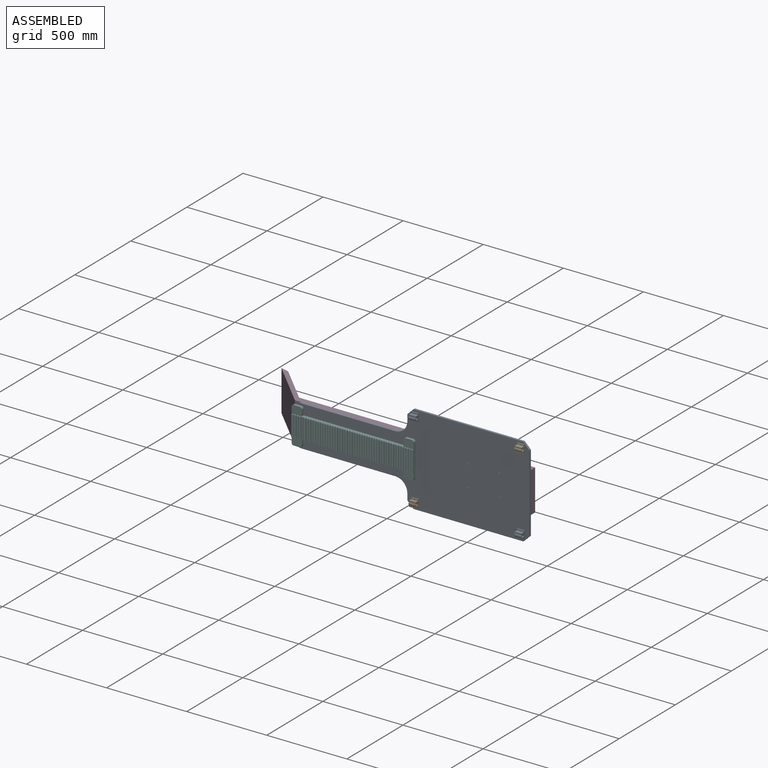
[diagram: assembled view]
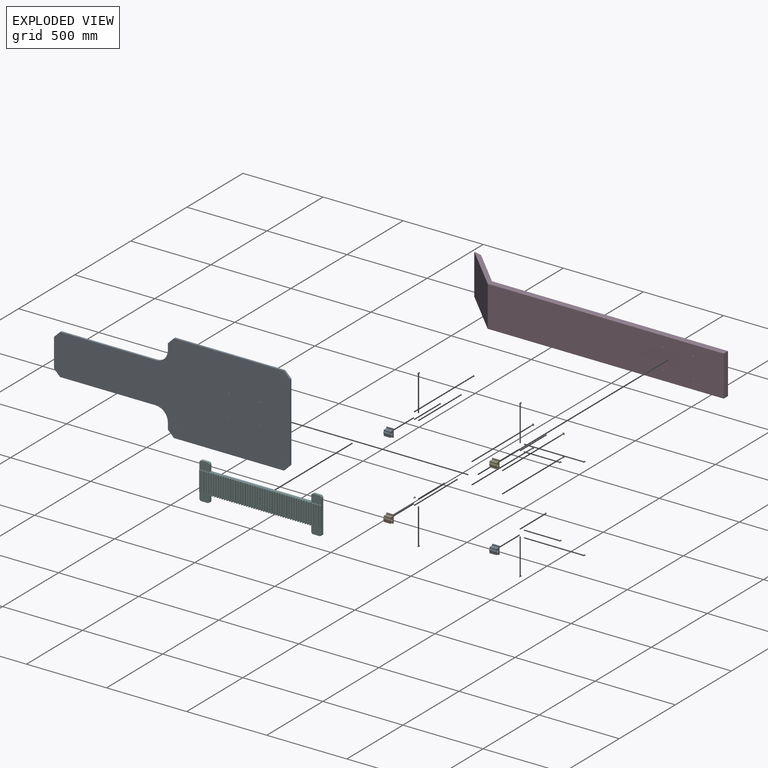
[diagram: exploded view]
GUIDED TOUR — MATED ASSEMBLY (Onshape document e9708ffabd6914f6b537aed8, AutoMate assembly e9708ffabd6914f6b537aed8_26f92d5d70f1b89094800ef0_7c7fea5a1ede16030653a03a_default)

This assembly has 27 components, labeled P0..P26 below (a component is one placed occurrence of a part; the same part can appear more than once), held together by 26 mates. A mate is a constraint between two components; its type names the relative motion it leaves free:
  FASTENED — locks the two components together rigidly (no relative motion).
Axis/direction vectors are unit vectors and 'through' points are millimeter coordinates, both in the assembly's world frame.

MATES
  1. FASTENED "Fastened 4": P12 <-> P24, direction (0.000, 1.000, 0.000) through (999.34, 252.25, 369.30) mm
  2. FASTENED "Fastened 9": P22 <-> P24, direction (0.000, -1.000, 0.000) through (338.93, 264.95, 326.43) mm
  3. FASTENED "Fastened 13": P2 <-> P24, direction (0.000, -1.000, 0.000) through (999.34, 264.95, 326.43) mm
  4. FASTENED "Fastened 21": P26 <-> P24, direction (0.000, -1.000, 0.000) through (338.93, 264.95, -115.69) mm
  5. FASTENED "Fastened 22": P17 <-> P24, direction (0.000, -1.000, 0.000) through (364.33, 264.95, -115.69) mm
  6. FASTENED "Fastened 8": P13 <-> P24, direction (0.000, -1.000, 0.000) through (338.93, 264.95, 369.30) mm
  7. FASTENED "Fastened 5": P0 <-> P24, direction (0.000, 1.000, 0.000) through (999.34, 252.25, -115.69) mm
  8. FASTENED "Fastened 14": P18 <-> P24, direction (0.000, -1.000, 0.000) through (1024.74, 264.95, 326.43) mm
  9. FASTENED "Fastened 2": P25 <-> P24, direction (0.000, 1.000, 0.000) through (338.93, 252.25, -115.69) mm
  10. FASTENED "Fastened 12": P9 <-> P24, direction (0.000, -1.000, 0.000) through (1024.74, 264.95, 369.30) mm
  11. FASTENED "Fastened 7": P23 <-> P24, direction (0.000, -1.000, 0.000) through (364.33, 264.95, 369.30) mm
  12. FASTENED "Fastened 3": P16 <-> P24, direction (0.000, 1.000, 0.000) through (364.33, 252.25, 326.43) mm
  13. FASTENED "Fastened 23": P3 <-> P11, direction (0.000, -1.000, 0.000) through (681.83, 303.05, 170.85) mm
  14. FASTENED "Fastened 20": P7 <-> P24, direction (0.000, -1.000, 0.000) through (364.33, 264.95, -158.56) mm
  15. FASTENED "Fastened 25": P21 <-> P11, direction (0.000, -1.000, 0.000) through (681.83, 303.05, 39.89) mm
  16. FASTENED "Fastened 10": P15 <-> P24, direction (0.000, -1.000, 0.000) through (364.33, 264.95, 326.43) mm
  17. FASTENED "Fastened 19": P10 <-> P24, direction (0.000, -1.000, 0.000) through (338.93, 264.95, -158.56) mm
  18. FASTENED "Fastened 24": P1 <-> P11, direction (0.000, -1.000, 0.000) through (872.33, 303.05, 170.85) mm
  19. FASTENED "Fastened 6": P11 <-> P24, direction (0.000, -1.000, 0.000) through (872.33, 264.95, 39.89) mm
  20. FASTENED "Fastened 15": P6 <-> P24, direction (0.000, -1.000, 0.000) through (1024.74, 264.95, -158.56) mm
  21. FASTENED "Fastened 11": P8 <-> P24, direction (0.000, -1.000, 0.000) through (999.34, 264.95, 369.30) mm
  22. FASTENED "Fastened 1": P5 <-> P24, direction (0.000, 0.000, -1.000) through (-410.37, 252.25, 105.37) mm
  23. FASTENED "Fastened 17": P19 <-> P24, direction (0.000, -1.000, 0.000) through (999.34, 264.95, -115.69) mm
  24. FASTENED "Fastened 26": P14 <-> P11, direction (0.000, -1.000, 0.000) through (872.33, 303.05, 39.89) mm
  25. FASTENED "Fastened 18": P20 <-> P24, direction (0.000, -1.000, 0.000) through (1024.74, 264.95, -115.69) mm
  26. FASTENED "Fastened 16": P4 <-> P24, direction (0.000, -1.000, 0.000) through (999.34, 264.95, -158.56) mm

ASSEMBLY ORDER
  1. P26 — the base component [order verified]
  2. P22 [order verified]
  3. P17 [order verified]
  4. P15 [order verified]
  5. P19 [order verified]
  6. P2 [order verified]
  7. P13 [order verified]
  8. P10 [order verified]
  9. P24 [order verified]
  10. P20 [order verified]
  11. P18 [order verified]
  12. P9 [order verified]
  13. P6 [order verified]
  14. P21 [order verified]
  15. P14 [order verified]
  16. P3 [order verified]
  17. P1 [order verified]
  18. P11 [order verified]
  19. P25 [order verified]
  20. P16 [order verified]
  21. P12 [order verified]
  22. P0 [order verified]
  23. P5 [order verified]
  24. P23 [order verified]
  25. P7 [order verified]
  26. P4 [order verified]
  27. P8 [order verified]
Order-tag legend:
  [order verified] — this step's position reverses a verified removal order: the component was checked to insert without passing through the ones already placed.

Of the 27 components, 3 carry the full construction recipe — the FeatureScript program that regenerates the part's solid from scratch; the rest are supplied as boundary geometry only.
Because this assembly has more than 12 components, the tour below covers the 12 most significant ones individually (every recipe-attached component first, then the largest by part volume), in assembly order; the remaining 15 are summarized together in a grouped section at the end.
Each toured component is shown spotlighted twice — in the assembled view, then in the exploded view, where a leader line traces a displaced component back to its assembled socket (saturated green if recipe-attached, orange if geometry-only; every other component desaturated gray) — followed by its recipe or geometry summary and the mates that hold it.
NOTE — this tour is split across 2 documents so each fits a 32k-token context. This is document 1: the component sections continue in the remaining 1 document, each repeating the header above.
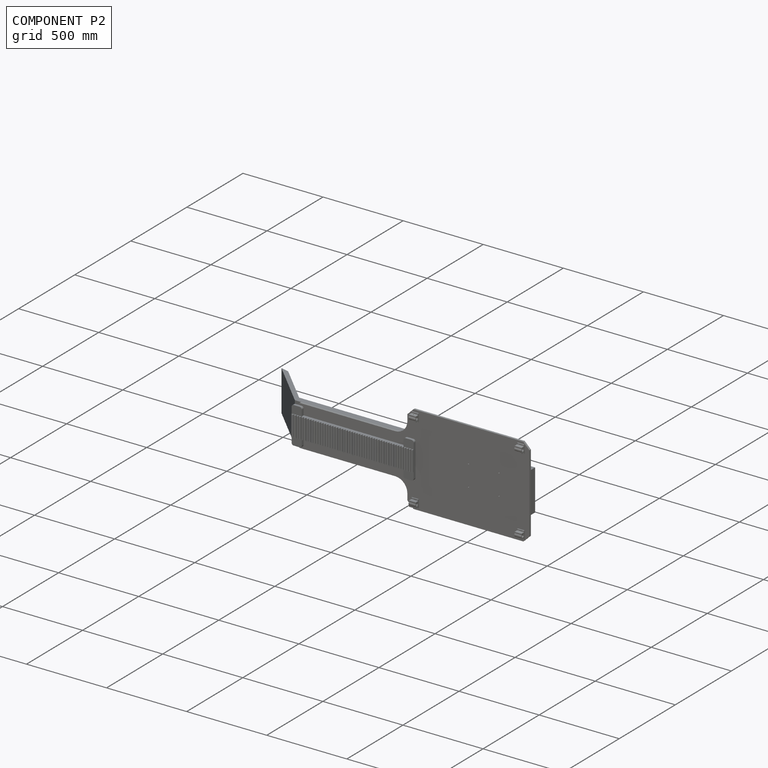
[diagram: component P2 — assembled]
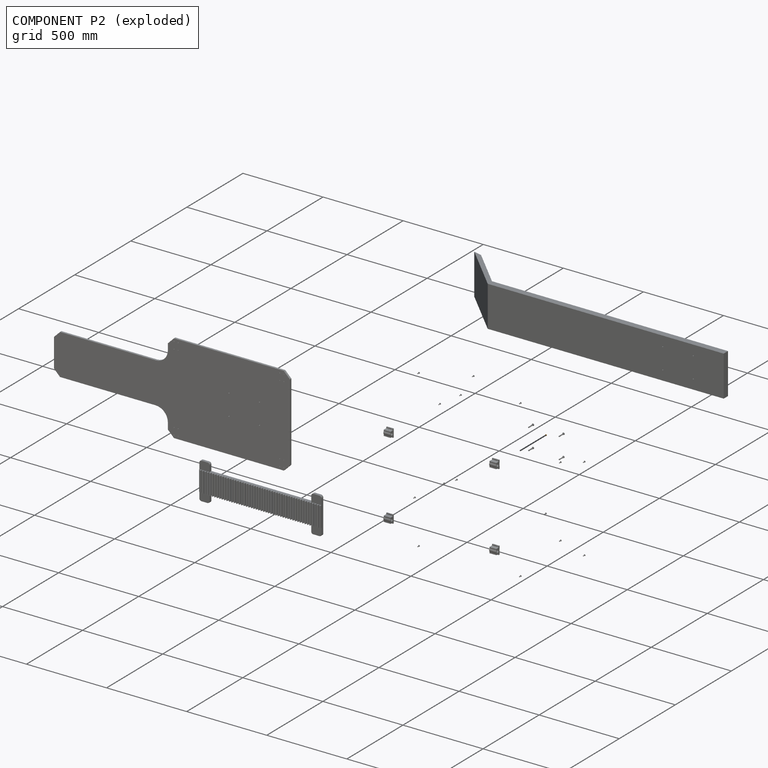
[diagram: component P2 — exploded]
COMPONENT P2 — geometry summary (no construction recipe available for this part):
  bounding box: 16.6 x 10.7 x 10.7 mm
  B-rep topology: 1 solid, 68 faces, 380 edges
  volume: 333 mm^3 (18% of its bounding box)
Held by: FASTENED mate "Fastened 13" to P24.
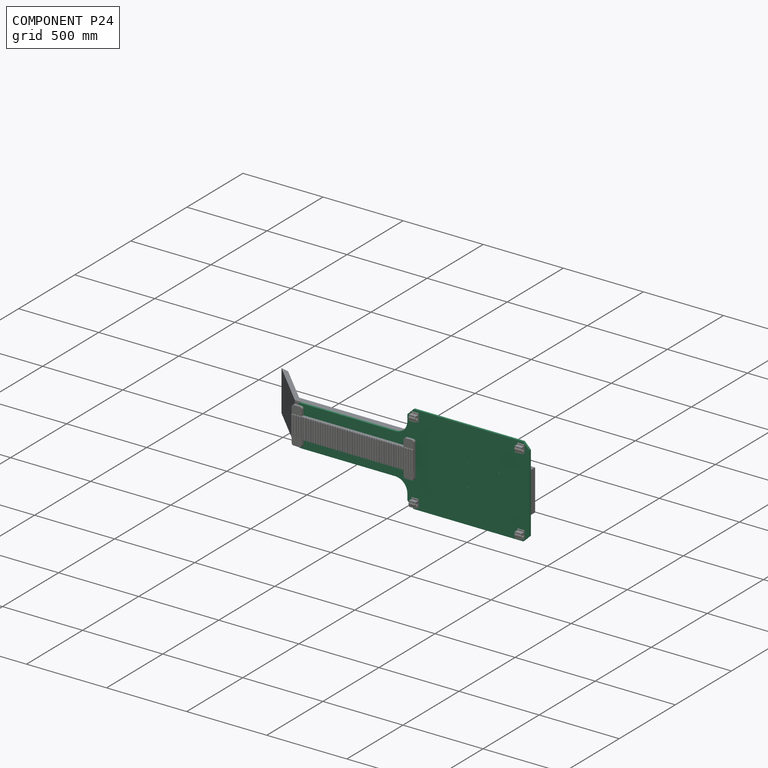
[diagram: component P24 — assembled]
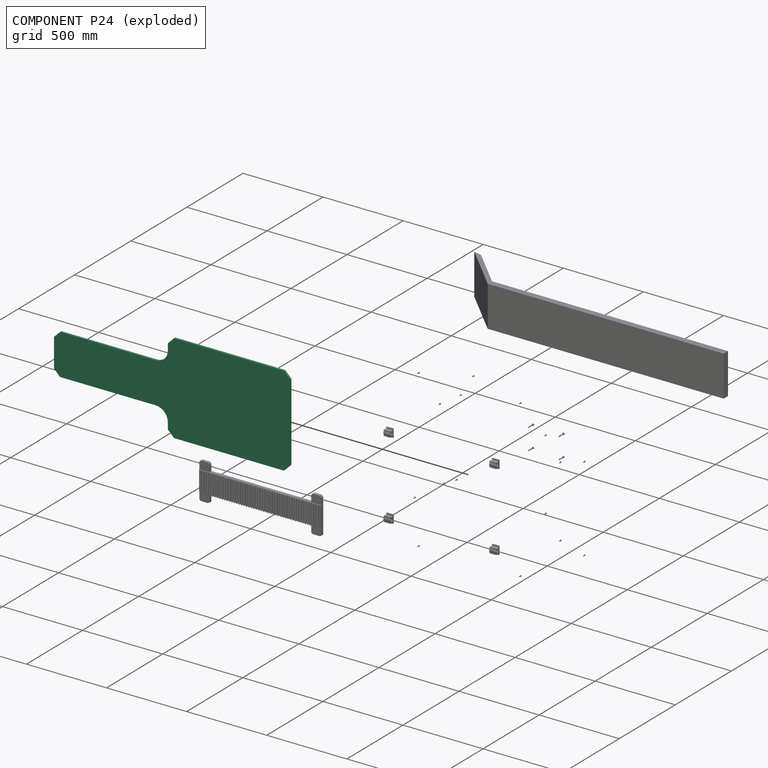
[diagram: component P24 — exploded]
COMPONENT P24 — recipe-attached (CADFS 00270912, mesh-verified: the recipe's output STEP matches this component's geometry to below the mesh-comparison resolution (tessellation chordal tolerance ~2.37 mm)).
Held by: FASTENED mate "Fastened 4" to P12; FASTENED mate "Fastened 9" to P22; FASTENED mate "Fastened 13" to P2; FASTENED mate "Fastened 21" to P26; FASTENED mate "Fastened 22" to P17; FASTENED mate "Fastened 8" to P13; FASTENED mate "Fastened 5" to P0; FASTENED mate "Fastened 14" to P18; FASTENED mate "Fastened 2" to P25; FASTENED mate "Fastened 12" to P9; FASTENED mate "Fastened 7" to P23; FASTENED mate "Fastened 3" to P16; FASTENED mate "Fastened 20" to P7; FASTENED mate "Fastened 10" to P15; FASTENED mate "Fastened 19" to P10; FASTENED mate "Fastened 6" to P11; FASTENED mate "Fastened 15" to P6; FASTENED mate "Fastened 11" to P8; FASTENED mate "Fastened 1" to P5; FASTENED mate "Fastened 17" to P19; FASTENED mate "Fastened 18" to P20; FASTENED mate "Fastened 16" to P4.
Construction recipe (FeatureScript — the CAD program that rebuilds this solid; sketch coordinates are in the units given by the * unit suffixes, e.g. mm):

FeatureScript 1511;
import(path : "onshape/std/geometry.fs", version : "1511.0");
import(path : "onshape/std/common.fs", version : "1511.0");
const mm = millimeter;
const VERTEX = EntityType.VERTEX;
const EDGE = EntityType.EDGE;
const FACE = EntityType.FACE;
const BODY = EntityType.BODY;
function v(x, y){return vector(x, y);}
function OD(order){return orderDisambiguation(order);}
function OSD(set){return originalSetDisambiguation(set);}
function TD(topology){return topologyDisambiguation(topology);}
function TDD(query){return trueDependencyDisambiguation(query);}
function sQuery(a, b, c) {return sketchEntityQuery(a, b, c);}

annotation { "Feature Type Name" : "Feature", "Feature Type Description" : "" }
export const myFeature = defineFeature(function(context is Context, id is Id, definition is map)
    precondition{}
    {
        {
            var Q0;
            Q0=qCreatedBy(makeId("Front.planeOp"),FACE);
            var sketch = newSketch(context, id + "F0", { "sketchPlane" : qUnion([Q0])});
            skLineSegment(sketch, "E0", {"start": v(711.2, 0) * mm, "end": v(1473.2, 0) * mm});
            skLineSegment(sketch, "E1.0", {"start": v(711.2, 562.76) * mm, "end": v(1473.2, 562.76) * mm});
            skLineSegment(sketch, "E2", {"start": v(1473.2, 562.76) * mm, "end": v(1473.2, 0) * mm});
            skLineSegment(sketch, "E3.0", {"start": v(711.2, 0) * mm, "end": v(711.2, 78.18) * mm});
            skLineSegment(sketch, "E4.0", {"start": v(635, 408.38) * mm, "end": v(0, 408.38) * mm});
            skLineSegment(sketch, "E5.MirrorCS", {"start": v(635, 154.38) * mm, "end": v(0, 154.38) * mm});
            skLineSegment(sketch, "E6.trimOffspring", {"start": v(711.2, 484.58) * mm, "end": v(711.2, 562.76) * mm});
            skArc(sketch, "E7.filletArc", {"start": v(635, 408.38) * mm, "mid": v(688.88, 430.7) * mm, "end": v(711.2, 484.58) * mm});
            skArc(sketch, "E8.filletArc", {"start": v(711.2, 78.18) * mm, "mid": v(688.88, 132.06) * mm, "end": v(635, 154.38) * mm});
            skLineSegment(sketch, "E9", {"start": v(0, 408.38) * mm, "end": v(0, 154.38) * mm});
            skSolve(sketch);
        }
        {
            var Q0;
            Q0 = qSketchRegion(id + "F0", true);
            extrude(context, id + "F1", {"entities" : qUnion([Q0]), "depth" : 12.7 * mm});
        }
        {
            var Q0;
            Q0=makeQuery(id+"F1.opExtrude","SWEPT_EDGE",EDGE,{"disambiguationData":[OSD([sQuery(id+"F0.wireOp",EDGE,"E1.0"),sQuery(id+"F0.wireOp",EDGE,"E6.trimOffspring")])]});
            var Q1;
            Q1=makeQuery(id+"F1.opExtrude","SWEPT_EDGE",EDGE,{"disambiguationData":[OSD([sQuery(id+"F0.wireOp",EDGE,"E0"),sQuery(id+"F0.wireOp",EDGE,"E3.0")])]});
            var Q2;
            Q2=makeQuery(id+"F1.opExtrude","SWEPT_EDGE",EDGE,{"disambiguationData":[OSD([sQuery(id+"F0.wireOp",EDGE,"E0"),sQuery(id+"F0.wireOp",EDGE,"E2")])]});
            var Q3;
            Q3=makeQuery(id+"F1.opExtrude","SWEPT_EDGE",EDGE,{"disambiguationData":[OSD([sQuery(id+"F0.wireOp",EDGE,"E1.0"),sQuery(id+"F0.wireOp",EDGE,"E2")])]});
            var Q4;
            Q4=makeQuery(id+"F1.opExtrude","SWEPT_EDGE",EDGE,{"disambiguationData":[OSD([sQuery(id+"F0.wireOp",EDGE,"E5.MirrorCS"),sQuery(id+"F0.wireOp",EDGE,"E9")])]});
            var Q5;
            Q5=makeQuery(id+"F1.opExtrude","SWEPT_EDGE",EDGE,{"disambiguationData":[OSD([sQuery(id+"F0.wireOp",EDGE,"E4.0"),sQuery(id+"F0.wireOp",EDGE,"E9")])]});
            chamfer(context, id + "F2", {"entities" : qUnion([Q0, Q1, Q2, Q3, Q4, Q5]), "chamferType" : ChamferType.OFFSET_ANGLE, "width" : 38.1 * mm, "oppositeDirection" : false, "angle" : 45 * degree, "tangentPropagation" : true});
        }
        {
            var Q0;
            Q0=makeQuery(id+"F1.opExtrude","CAP_FACE",FACE,{"disambiguationData":[OSD([sQuery(id+"F0.wireOp",EDGE,"E0"),sQuery(id+"F0.wireOp",EDGE,"E1.0"),sQuery(id+"F0.wireOp",EDGE,"E2"),sQuery(id+"F0.wireOp",EDGE,"E3.0"),sQuery(id+"F0.wireOp",EDGE,"E4.0"),sQuery(id+"F0.wireOp",EDGE,"E5.MirrorCS"),sQuery(id+"F0.wireOp",EDGE,"E6.trimOffspring"),sQuery(id+"F0.wireOp",EDGE,"E7.filletArc"),sQuery(id+"F0.wireOp",EDGE,"E8.filletArc"),sQuery(id+"F0.wireOp",EDGE,"E9")])],"isStart":false});
            var sketch = newSketch(context, id + "F3", { "sketchPlane" : qUnion([Q0])});
            skCircle(sketch, "E10", {"center": v(1282.7, 346.86) * mm, "radius": 3.18 * mm});
            skCircle(sketch, "E11", {"center": v(1282.7, 215.9) * mm, "radius": 3.18 * mm});
            skPoint(sketch, "E12.endSnap0", {"position": v(1092.2, 215.9) * mm});
            skCircle(sketch, "E13", {"center": v(1092.2, 346.86) * mm, "radius": 3.18 * mm});
            skCircle(sketch, "E14", {"center": v(1092.2, 215.9) * mm, "radius": 3.18 * mm});
            skLineSegment(sketch, "E15", {"start": v(1282.7, 346.86) * mm, "end": v(500.57, 346.86) * mm});
            skLineSegment(sketch, "E16", {"start": v(1282.7, 215.9) * mm, "end": v(476.65, 215.9) * mm});
            skSolve(sketch);
        }
        {
            var Q0;
            Q0=sQuery(id+"F3.wireOp",VERTEX,"E12.endSnap0");
            var Q1;
            Q1=sQuery(id+"F3.wireOp",VERTEX,"E13.center");
            var Q2;
            Q2=sQuery(id+"F3.wireOp",VERTEX,"E10.center");
            var Q3;
            Q3=sQuery(id+"F3.wireOp",VERTEX,"E11.center");
            var Q4;
            Q4=makeQuery(id+"F1.opExtrude","SWEPT_BODY",BODY,{"disambiguationData":[OSD([sQuery(id+"F0.wireOp",EDGE,"E0"),sQuery(id+"F0.wireOp",EDGE,"E1.0"),sQuery(id+"F0.wireOp",EDGE,"E2"),sQuery(id+"F0.wireOp",EDGE,"E3.0"),sQuery(id+"F0.wireOp",EDGE,"E4.0"),sQuery(id+"F0.wireOp",EDGE,"E5.MirrorCS"),sQuery(id+"F0.wireOp",EDGE,"E6.trimOffspring"),sQuery(id+"F0.wireOp",EDGE,"E7.filletArc"),sQuery(id+"F0.wireOp",EDGE,"E8.filletArc"),sQuery(id+"F0.wireOp",EDGE,"E9")])]});
            hole(context, id + "F4", {"style" : HoleStyle.SIMPLE, "endStyle" : HoleEndStyle.THROUGH, "holeDiameter" : 6.35 * mm, "tappedDepth" : 12.7 * mm, "tapClearance" : 3, "locations" : qUnion([Q0, Q1, Q2, Q3]), "scope" : qUnion([Q4])});
        }
        {
            var Q0;
            Q0=makeQuery(id+"F1.opExtrude","CAP_FACE",FACE,{"disambiguationData":[OSD([sQuery(id+"F0.wireOp",EDGE,"E0"),sQuery(id+"F0.wireOp",EDGE,"E1.0"),sQuery(id+"F0.wireOp",EDGE,"E2"),sQuery(id+"F0.wireOp",EDGE,"E3.0"),sQuery(id+"F0.wireOp",EDGE,"E4.0"),sQuery(id+"F0.wireOp",EDGE,"E5.MirrorCS"),sQuery(id+"F0.wireOp",EDGE,"E6.trimOffspring"),sQuery(id+"F0.wireOp",EDGE,"E7.filletArc"),sQuery(id+"F0.wireOp",EDGE,"E8.filletArc"),sQuery(id+"F0.wireOp",EDGE,"E9")])],"isStart":false});
            var sketch = newSketch(context, id + "F5", { "sketchPlane" : qUnion([Q0])});
            skLineSegment(sketch, "E17", {"start": v(1422.4, 38.89) * mm, "end": v(1422.4, 0) * mm});
            skPoint(sketch, "E18", {"position": v(1422.4, 38.89) * mm});
            skLineSegment(sketch, "E19", {"start": v(1422.4, 38.89) * mm, "end": v(1422.4, 60.32) * mm});
            skLineSegment(sketch, "E20", {"start": v(1422.4, 60.32) * mm, "end": v(1435.1, 60.32) * mm});
            skLineSegment(sketch, "E21.MirrorCS", {"start": v(1422.4, 60.32) * mm, "end": v(1409.7, 60.32) * mm});
            skPoint(sketch, "E22", {"position": v(1409.7, 60.32) * mm});
            skPoint(sketch, "E23", {"position": v(1435.1, 60.32) * mm});
            skLineSegment(sketch, "E24", {"start": v(1422.4, 38.89) * mm, "end": v(1395.35, 38.89) * mm});
            skLineSegment(sketch, "E25.MirrorCS", {"start": v(1422.4, 17.45) * mm, "end": v(1409.7, 17.45) * mm});
            skLineSegment(sketch, "E26.MirrorCS", {"start": v(1422.4, 17.45) * mm, "end": v(1435.1, 17.45) * mm});
            skPoint(sketch, "E27", {"position": v(1409.7, 17.45) * mm});
            skPoint(sketch, "E28", {"position": v(1435.1, 17.45) * mm});
            skLineSegment(sketch, "E29.MirrorCS", {"start": v(762, 60.32) * mm, "end": v(774.7, 60.32) * mm});
            skLineSegment(sketch, "E30.MirrorCS", {"start": v(762, 38.89) * mm, "end": v(762, 60.32) * mm});
            skLineSegment(sketch, "E31.MirrorCS", {"start": v(762, 17.45) * mm, "end": v(774.7, 17.45) * mm});
            skLineSegment(sketch, "E32.MirrorCS", {"start": v(762, 60.32) * mm, "end": v(749.3, 60.32) * mm});
            skLineSegment(sketch, "E33.MirrorCS", {"start": v(762, 17.45) * mm, "end": v(749.3, 17.45) * mm});
            skLineSegment(sketch, "E34.MirrorCS", {"start": v(762, 38.89) * mm, "end": v(789.05, 38.89) * mm});
            skLineSegment(sketch, "E35.MirrorCS", {"start": v(762, 38.89) * mm, "end": v(762, 0) * mm});
            skPoint(sketch, "E36.MirrorP", {"position": v(762, 38.89) * mm});
            skPoint(sketch, "E37.MirrorP", {"position": v(749.3, 60.32) * mm});
            skPoint(sketch, "E38.MirrorP", {"position": v(749.3, 17.45) * mm});
            skPoint(sketch, "E39.MirrorP", {"position": v(774.7, 17.45) * mm});
            skPoint(sketch, "E40.MirrorP", {"position": v(774.7, 60.32) * mm});
            skLineSegment(sketch, "E41.MirrorCS", {"start": v(1422.4, 523.88) * mm, "end": v(1422.4, 502.44) * mm});
            skLineSegment(sketch, "E42.MirrorCS", {"start": v(1422.4, 502.44) * mm, "end": v(1409.7, 502.44) * mm});
            skLineSegment(sketch, "E43.MirrorCS", {"start": v(1422.4, 545.31) * mm, "end": v(1409.7, 545.31) * mm});
            skLineSegment(sketch, "E44.MirrorCS", {"start": v(1422.4, 502.44) * mm, "end": v(1435.1, 502.44) * mm});
            skLineSegment(sketch, "E45.MirrorCS", {"start": v(1422.4, 545.31) * mm, "end": v(1435.1, 545.31) * mm});
            skLineSegment(sketch, "E46.MirrorCS", {"start": v(1422.4, 523.88) * mm, "end": v(1422.4, 562.76) * mm});
            skLineSegment(sketch, "E47.MirrorCS", {"start": v(1422.4, 523.88) * mm, "end": v(1395.35, 523.88) * mm});
            skPoint(sketch, "E48.MirrorP", {"position": v(1422.4, 523.88) * mm});
            skPoint(sketch, "E49.MirrorP", {"position": v(1435.1, 502.44) * mm});
            skPoint(sketch, "E50.MirrorP", {"position": v(1409.7, 545.31) * mm});
            skPoint(sketch, "E51.MirrorP", {"position": v(1435.1, 545.31) * mm});
            skPoint(sketch, "E52.MirrorP", {"position": v(1409.7, 502.44) * mm});
            skLineSegment(sketch, "E53.MirrorCS", {"start": v(762, 545.31) * mm, "end": v(774.7, 545.31) * mm});
            skLineSegment(sketch, "E54.MirrorCS", {"start": v(762, 523.88) * mm, "end": v(762, 502.44) * mm});
            skLineSegment(sketch, "E55.MirrorCS", {"start": v(762, 502.44) * mm, "end": v(774.7, 502.44) * mm});
            skLineSegment(sketch, "E56.MirrorCS", {"start": v(762, 502.44) * mm, "end": v(749.3, 502.44) * mm});
            skLineSegment(sketch, "E57.MirrorCS", {"start": v(762, 545.31) * mm, "end": v(749.3, 545.31) * mm});
            skLineSegment(sketch, "E58.MirrorCS", {"start": v(762, 523.88) * mm, "end": v(789.05, 523.88) * mm});
            skLineSegment(sketch, "E59.MirrorCS", {"start": v(762, 523.88) * mm, "end": v(762, 562.76) * mm});
            skPoint(sketch, "E60.MirrorP", {"position": v(774.7, 545.31) * mm});
            skPoint(sketch, "E61.MirrorP", {"position": v(749.3, 545.31) * mm});
            skPoint(sketch, "E62.MirrorP", {"position": v(762, 523.88) * mm});
            skPoint(sketch, "E63.MirrorP", {"position": v(749.3, 502.44) * mm});
            skPoint(sketch, "E64.MirrorP", {"position": v(774.7, 502.44) * mm});
            skSolve(sketch);
        }
        {
            var Q0;
            Q0=sQuery(id+"F5.wireOp",VERTEX,"E61.MirrorP");
            var Q1;
            Q1=sQuery(id+"F5.wireOp",VERTEX,"E63.MirrorP");
            var Q2;
            Q2=sQuery(id+"F5.wireOp",VERTEX,"E64.MirrorP");
            var Q3;
            Q3=sQuery(id+"F5.wireOp",VERTEX,"E60.MirrorP");
            var Q4;
            Q4=sQuery(id+"F5.wireOp",VERTEX,"E37.MirrorP");
            var Q5;
            Q5=sQuery(id+"F5.wireOp",VERTEX,"E39.MirrorP");
            var Q6;
            Q6=sQuery(id+"F5.wireOp",VERTEX,"E38.MirrorP");
            var Q7;
            Q7=sQuery(id+"F5.wireOp",VERTEX,"E40.MirrorP");
            var Q8;
            Q8=sQuery(id+"F5.wireOp",VERTEX,"E52.MirrorP");
            var Q9;
            Q9=sQuery(id+"F5.wireOp",VERTEX,"E49.MirrorP");
            var Q10;
            Q10=sQuery(id+"F5.wireOp",VERTEX,"E51.MirrorP");
            var Q11;
            Q11=sQuery(id+"F5.wireOp",VERTEX,"E50.MirrorP");
            var Q12;
            Q12=sQuery(id+"F5.wireOp",VERTEX,"E27");
            var Q13;
            Q13=sQuery(id+"F5.wireOp",VERTEX,"E28");
            var Q14;
            Q14=sQuery(id+"F5.wireOp",VERTEX,"E23");
            var Q15;
            Q15=sQuery(id+"F5.wireOp",VERTEX,"E22");
            var Q16;
            Q16=makeQuery(id+"F1.opExtrude","SWEPT_BODY",BODY,{"disambiguationData":[OSD([sQuery(id+"F0.wireOp",EDGE,"E0"),sQuery(id+"F0.wireOp",EDGE,"E1.0"),sQuery(id+"F0.wireOp",EDGE,"E2"),sQuery(id+"F0.wireOp",EDGE,"E3.0"),sQuery(id+"F0.wireOp",EDGE,"E4.0"),sQuery(id+"F0.wireOp",EDGE,"E5.MirrorCS"),sQuery(id+"F0.wireOp",EDGE,"E6.trimOffspring"),sQuery(id+"F0.wireOp",EDGE,"E7.filletArc"),sQuery(id+"F0.wireOp",EDGE,"E8.filletArc"),sQuery(id+"F0.wireOp",EDGE,"E9")])]});
            hole(context, id + "F6", {"style" : HoleStyle.SIMPLE, "endStyle" : HoleEndStyle.THROUGH, "holeDiameter" : 3.97 * mm, "tappedDepth" : 12.7 * mm, "tapClearance" : 3, "locations" : qUnion([Q0, Q1, Q2, Q3, Q4, Q5, Q6, Q7, Q8, Q9, Q10, Q11, Q12, Q13, Q14, Q15]), "scope" : qUnion([Q16])});
        }
    });
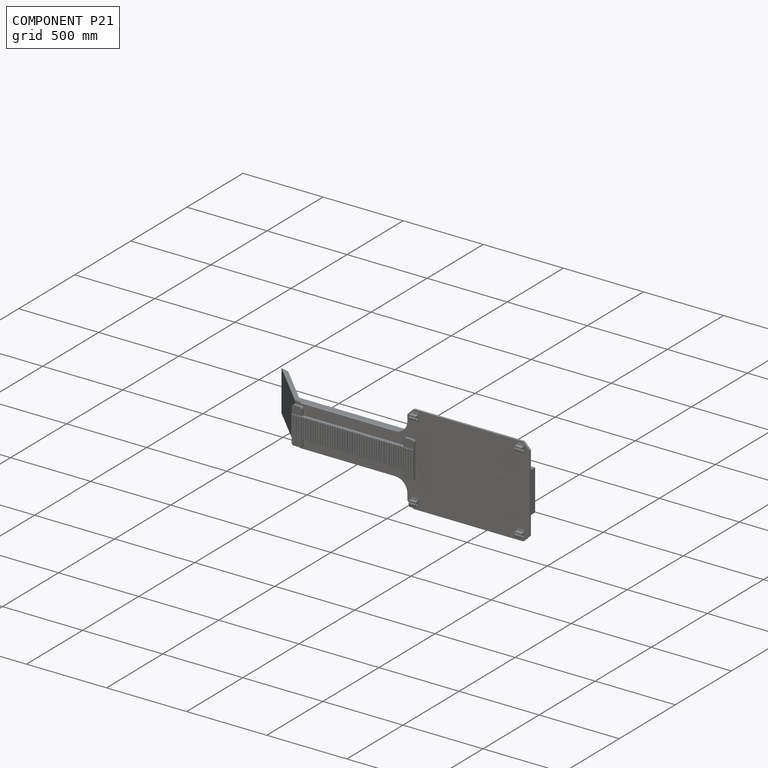
[diagram: component P21 — assembled]
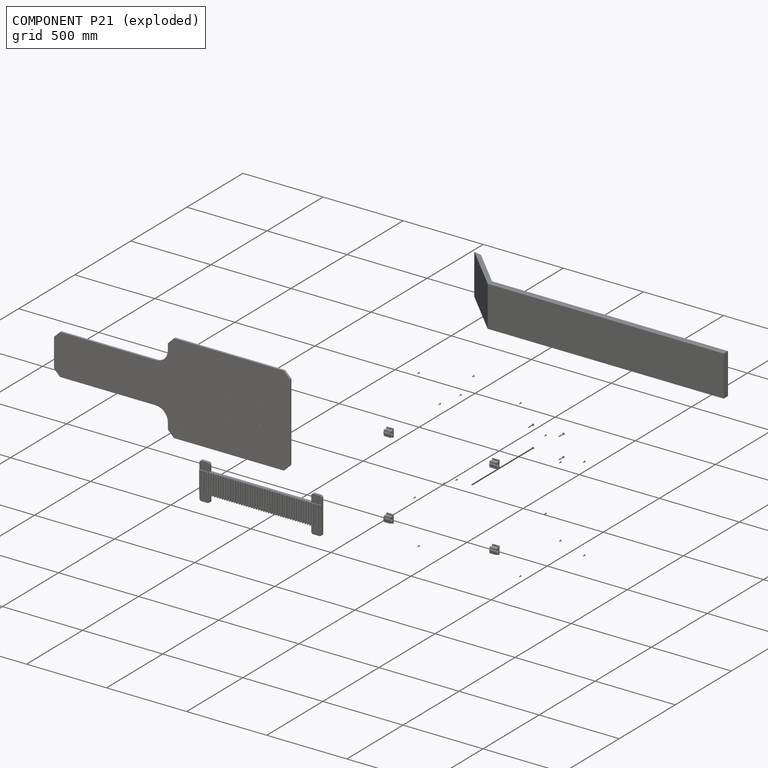
[diagram: component P21 — exploded]
COMPONENT P21 — geometry summary (no construction recipe available for this part):
  bounding box: 43.1 x 13.4 x 13.4 mm
  B-rep topology: 1 solid, 20 faces, 92 edges
  volume: 1376 mm^3 (18% of its bounding box)
  symmetry: 6-fold rotationally symmetric about the x axis
Held by: FASTENED mate "Fastened 25" to P11.
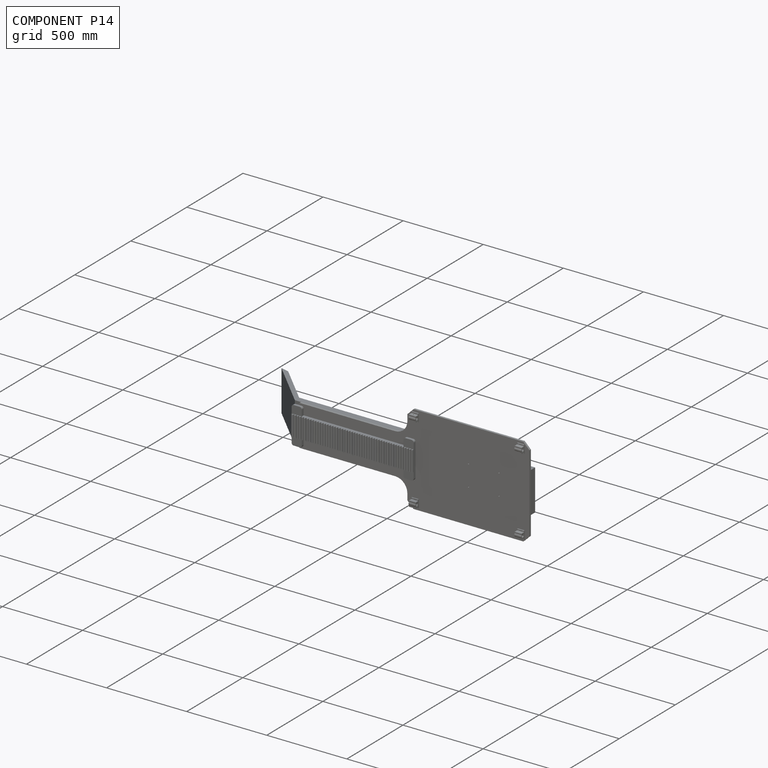
[diagram: component P14 — assembled]
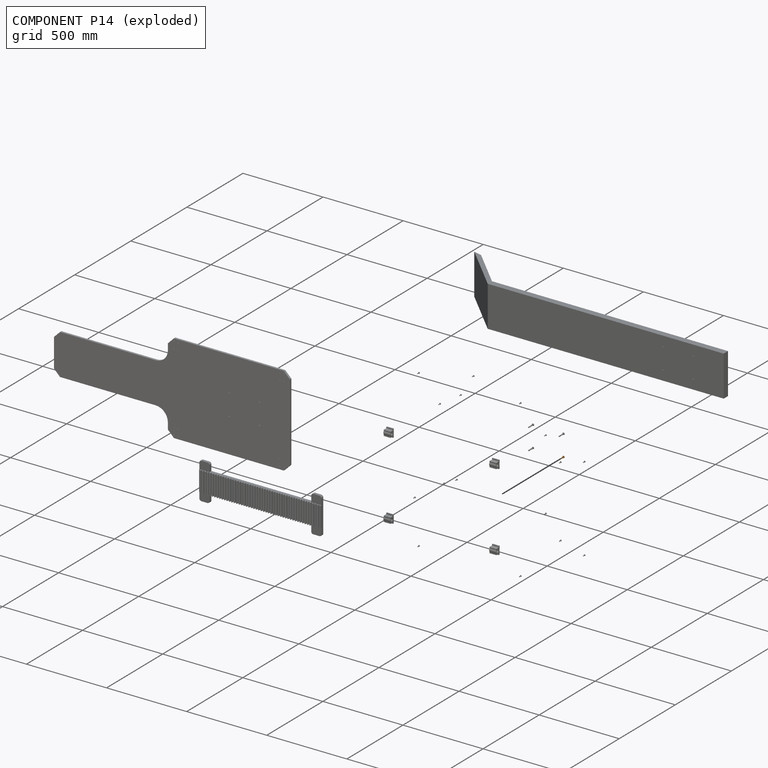
[diagram: component P14 — exploded]
COMPONENT P14 — geometry summary (no construction recipe available for this part):
  bounding box: 43.1 x 13.4 x 13.4 mm
  B-rep topology: 1 solid, 20 faces, 92 edges
  volume: 1376 mm^3 (18% of its bounding box)
  symmetry: 6-fold rotationally symmetric about the x axis
Held by: FASTENED mate "Fastened 26" to P11.
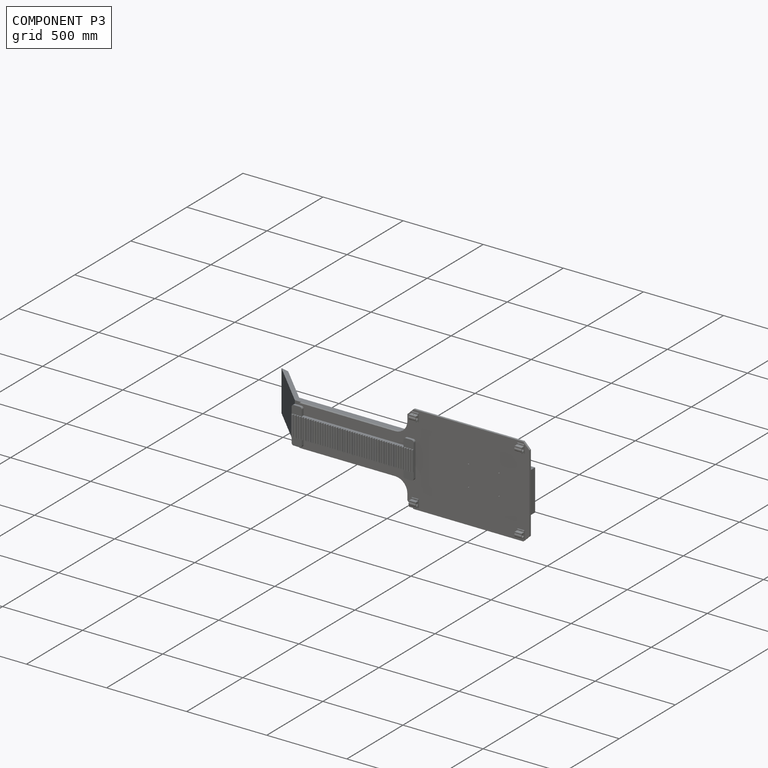
[diagram: component P3 — assembled]
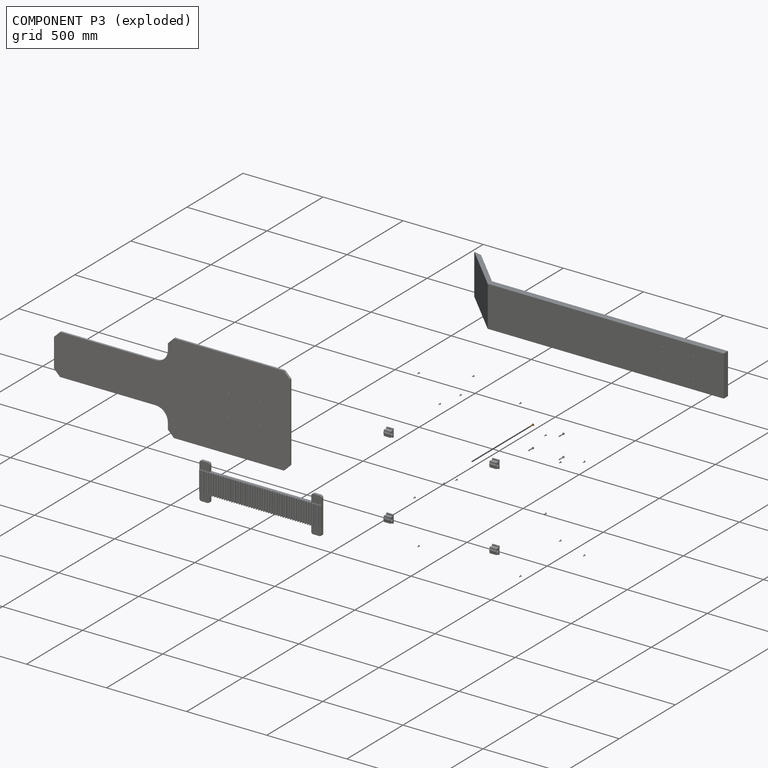
[diagram: component P3 — exploded]
COMPONENT P3 — geometry summary (no construction recipe available for this part):
  bounding box: 43.1 x 13.4 x 13.4 mm
  B-rep topology: 1 solid, 20 faces, 92 edges
  volume: 1376 mm^3 (18% of its bounding box)
  symmetry: 6-fold rotationally symmetric about the x axis
Held by: FASTENED mate "Fastened 23" to P11.
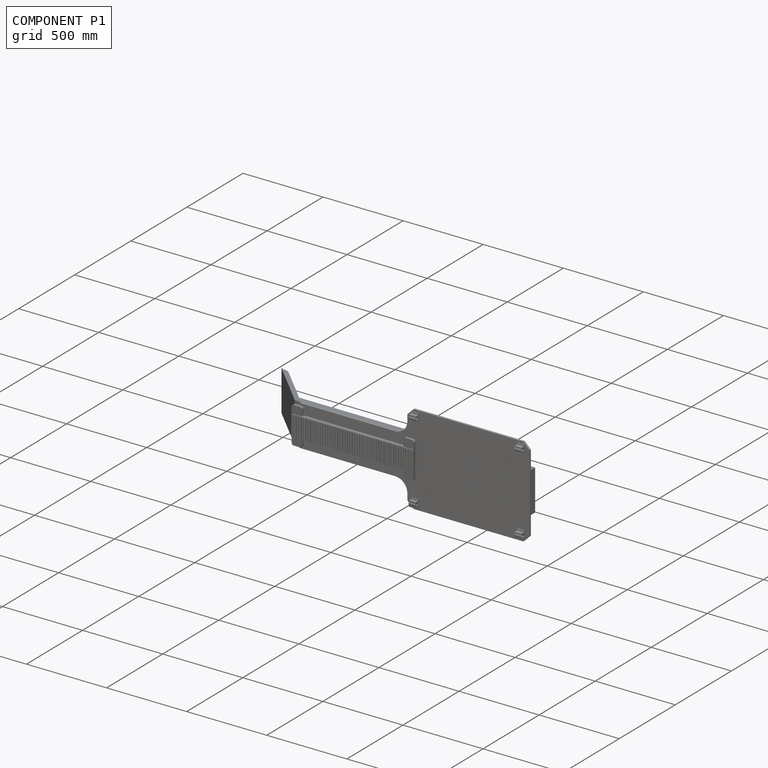
[diagram: component P1 — assembled]
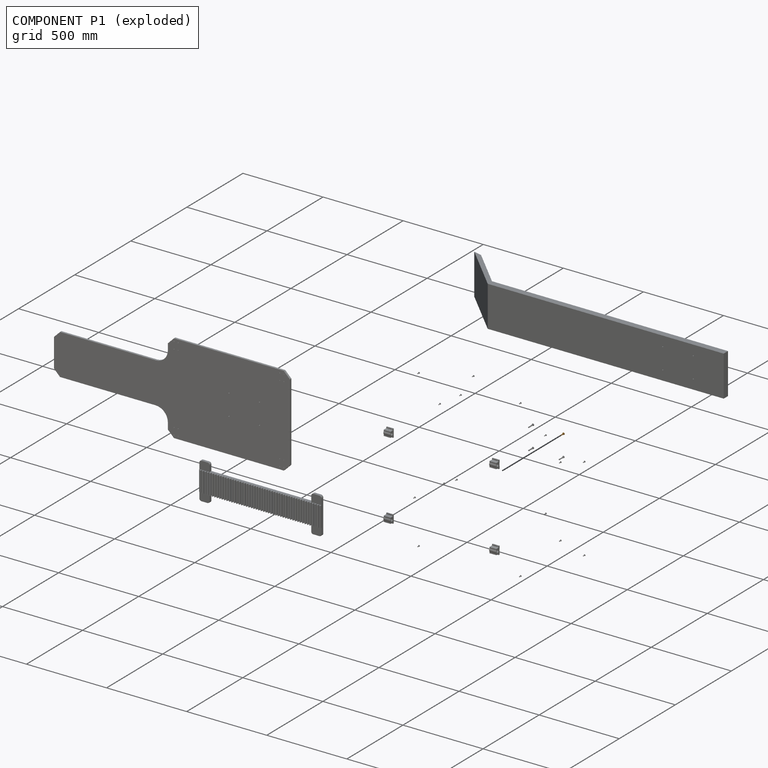
[diagram: component P1 — exploded]
COMPONENT P1 — geometry summary (no construction recipe available for this part):
  bounding box: 43.1 x 13.4 x 13.4 mm
  B-rep topology: 1 solid, 20 faces, 92 edges
  volume: 1376 mm^3 (18% of its bounding box)
  symmetry: 6-fold rotationally symmetric about the x axis
Held by: FASTENED mate "Fastened 24" to P11.
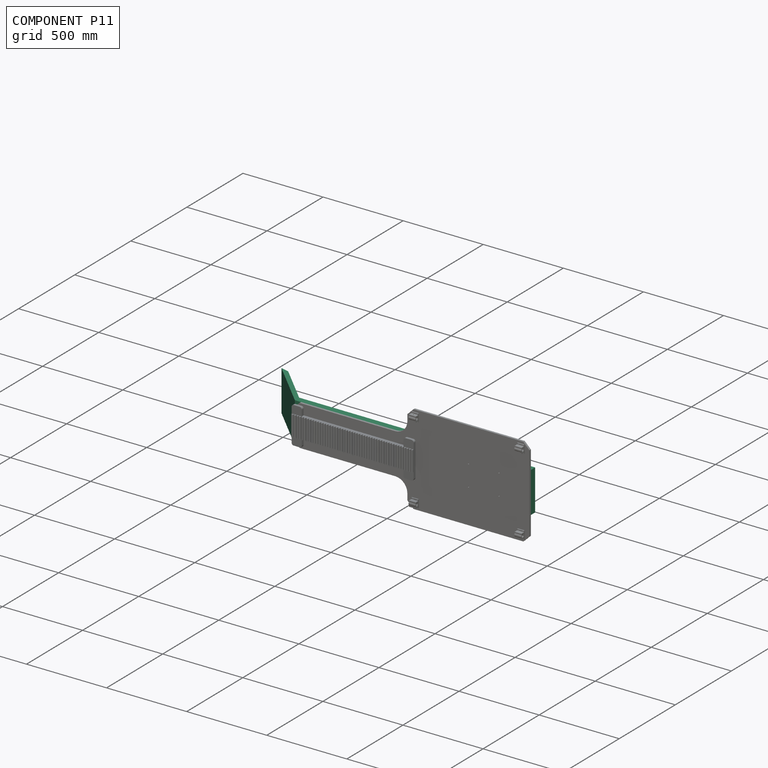
[diagram: component P11 — assembled]
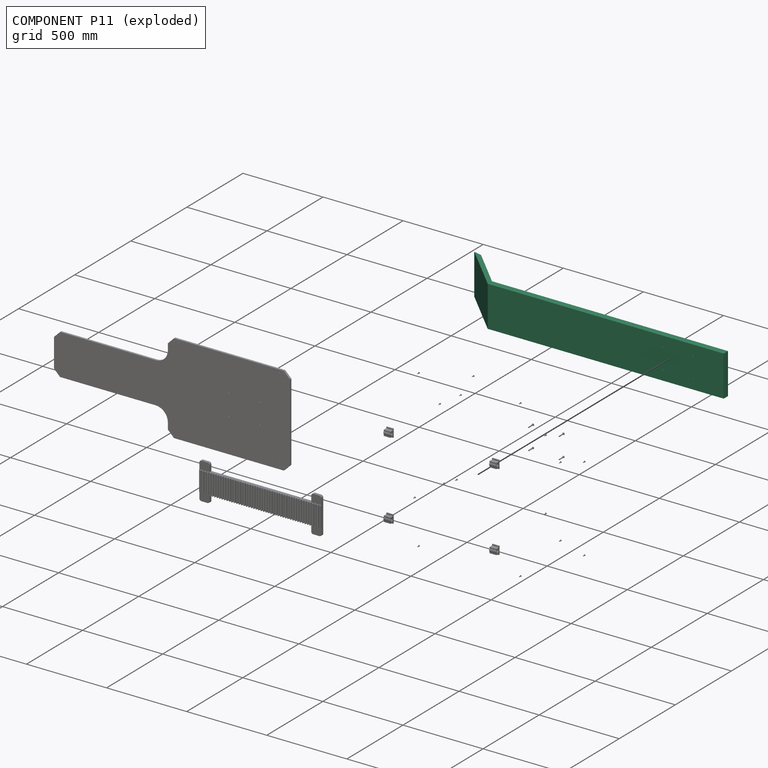
[diagram: component P11 — exploded]
COMPONENT P11 — recipe-attached (CADFS 00270913, mesh-verified: the recipe's output STEP matches this component's geometry to below the mesh-comparison resolution (tessellation chordal tolerance ~2.69 mm)).
Held by: FASTENED mate "Fastened 23" to P3; FASTENED mate "Fastened 25" to P21; FASTENED mate "Fastened 24" to P1; FASTENED mate "Fastened 6" to P24; FASTENED mate "Fastened 26" to P14.
Construction recipe (FeatureScript — the CAD program that rebuilds this solid; sketch coordinates are in the units given by the * unit suffixes, e.g. mm):

FeatureScript 1511;
import(path : "onshape/std/geometry.fs", version : "1511.0");
import(path : "onshape/std/common.fs", version : "1511.0");
const mm = millimeter;
const VERTEX = EntityType.VERTEX;
const EDGE = EntityType.EDGE;
const FACE = EntityType.FACE;
const BODY = EntityType.BODY;
function v(x, y){return vector(x, y);}
function OD(order){return orderDisambiguation(order);}
function OSD(set){return originalSetDisambiguation(set);}
function TD(topology){return topologyDisambiguation(topology);}
function TDD(query){return trueDependencyDisambiguation(query);}
function sQuery(a, b, c) {return sketchEntityQuery(a, b, c);}

annotation { "Feature Type Name" : "Feature", "Feature Type Description" : "" }
export const myFeature = defineFeature(function(context is Context, id is Id, definition is map)
    precondition{}
    {
        {
            var Q0;
            Q0=qCreatedBy(makeId("Front.planeOp"),FACE);
            var sketch = newSketch(context, id + "F0", { "sketchPlane" : qUnion([Q0])});
            skLineSegment(sketch, "E0", {"start": v(0, 0) * mm, "end": v(1473.2, 0) * mm});
            skLineSegment(sketch, "E1.0", {"start": v(0, 38.1) * mm, "end": v(1473.2, 38.1) * mm});
            skLineSegment(sketch, "E2", {"start": v(1473.2, 0) * mm, "end": v(1473.2, 38.1) * mm});
            skLineSegment(sketch, "E3", {"start": v(0, 38.1) * mm, "end": v(-279.35, -241.25) * mm});
            skPoint(sketch, "E4.endSnap0", {"position": v(-260.3, -241.25) * mm});
            skLineSegment(sketch, "E5", {"start": v(0, 0) * mm, "end": v(-227.3, -227.3) * mm});
            skLineSegment(sketch, "E6", {"start": v(-279.35, -241.25) * mm, "end": v(-227.3, -227.3) * mm});
            skPoint(sketch, "E4.end.orphan", {"position": v(-260.3, -260.3) * mm});
            skSolve(sketch);
        }
        {
            var Q0;
            Q0=makeQuery(id+"F0.imprint","IMPRINT",FACE,{"disambiguationData":[TD([[makeQuery(id+"F0.imprint","IMPRINT",EDGE,{"derivedFrom":sQuery(id+"F0.wireOp",EDGE,"E0")}),1.0]])]});
            extrude(context, id + "F1", {"entities" : qUnion([Q0]), "depth" : 254 * mm});
        }
        {
            var Q0;
            Q0=makeQuery(id+"F1.opExtrude","SWEPT_FACE",FACE,{"disambiguationData":[OSD([sQuery(id+"F0.wireOp",EDGE,"E1.0")])]});
            var sketch = newSketch(context, id + "F2", { "sketchPlane" : qUnion([Q0])});
            skLineSegment(sketch, "E7", {"start": v(0, 0) * mm, "end": v(0, -254) * mm});
            skLineSegment(sketch, "E8", {"start": v(1473.2, 0) * mm, "end": v(1473.2, -19.34) * mm});
            skLineSegment(sketch, "E9", {"start": v(1473.2, 0) * mm, "end": v(1473.2, -254) * mm});
            skLineSegment(sketch, "E10", {"start": v(1092.2, -254) * mm, "end": v(1282.7, -254) * mm});
            skCircle(sketch, "E11", {"center": v(1092.2, -61.52) * mm, "radius": 3.18 * mm});
            skCircle(sketch, "E12", {"center": v(1092.2, -192.48) * mm, "radius": 3.18 * mm});
            skCircle(sketch, "E13", {"center": v(1282.7, -61.52) * mm, "radius": 3.18 * mm});
            skCircle(sketch, "E14", {"center": v(1282.7, -192.48) * mm, "radius": 3.18 * mm});
            skSolve(sketch);
        }
        {
            var Q0;
            Q0 = qSketchRegion(id + "F2", true);
            extrude(context, id + "F3", {"entities" : qUnion([Q0]), "operationType" : NewBodyOperationType.REMOVE, "oppositeDirection" : true, "depth" : 38.1 * mm});
        }
    });
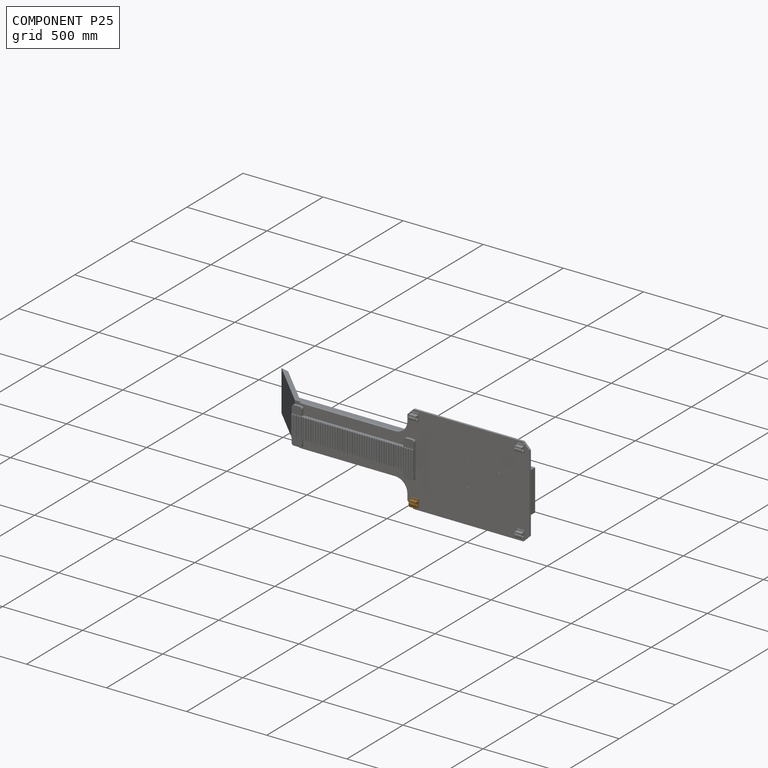
[diagram: component P25 — assembled]
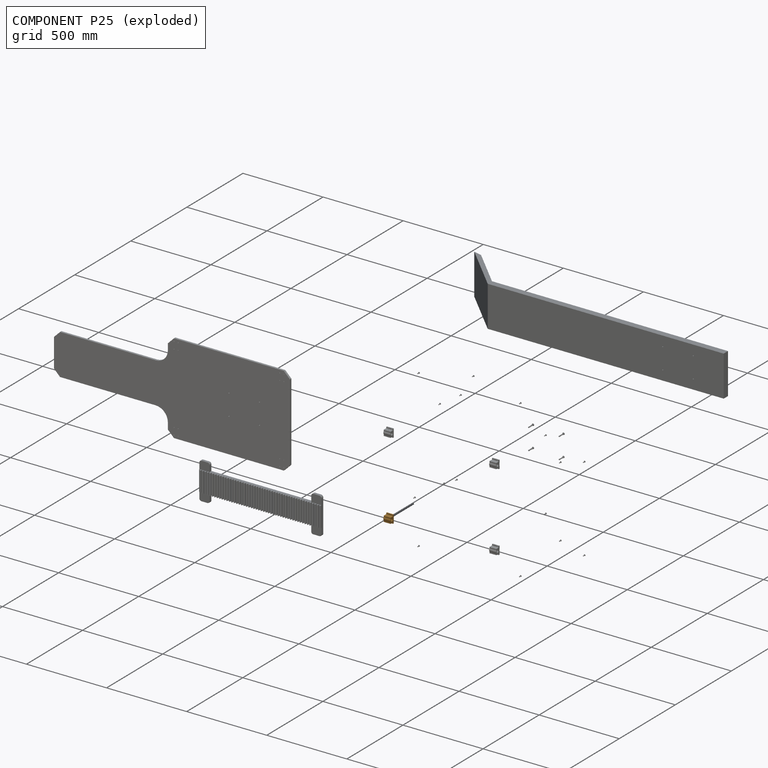
[diagram: component P25 — exploded]
COMPONENT P25 — geometry summary (no construction recipe available for this part):
  bounding box: 50.8 x 42.9 x 31.8 mm
  B-rep topology: 1 solid, 939 faces, 5432 edges
  volume: 42037 mm^3 (61% of its bounding box)
  symmetry: mirror-symmetric across its y mid-plane
Held by: FASTENED mate "Fastened 2" to P24.
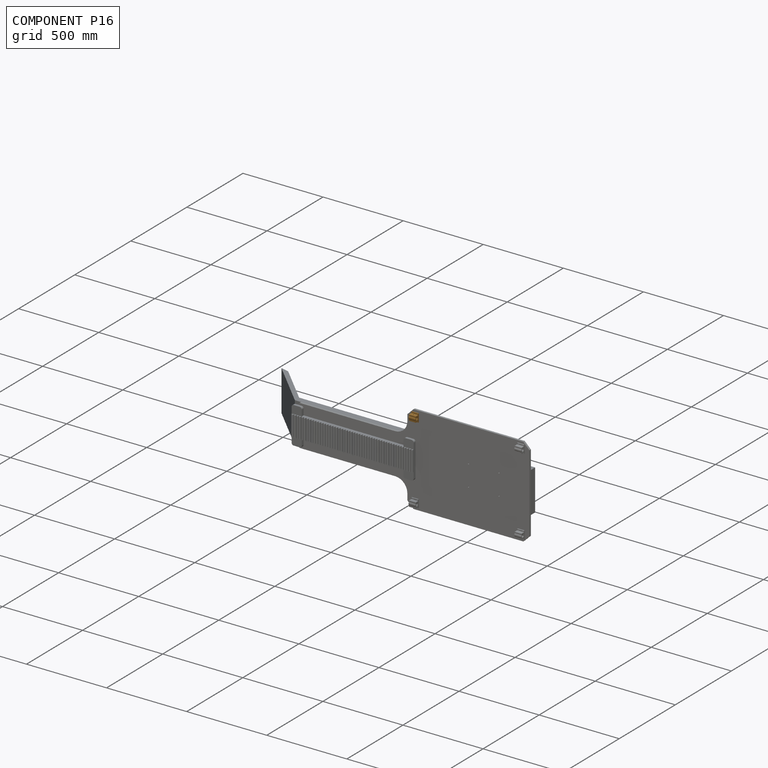
[diagram: component P16 — assembled]
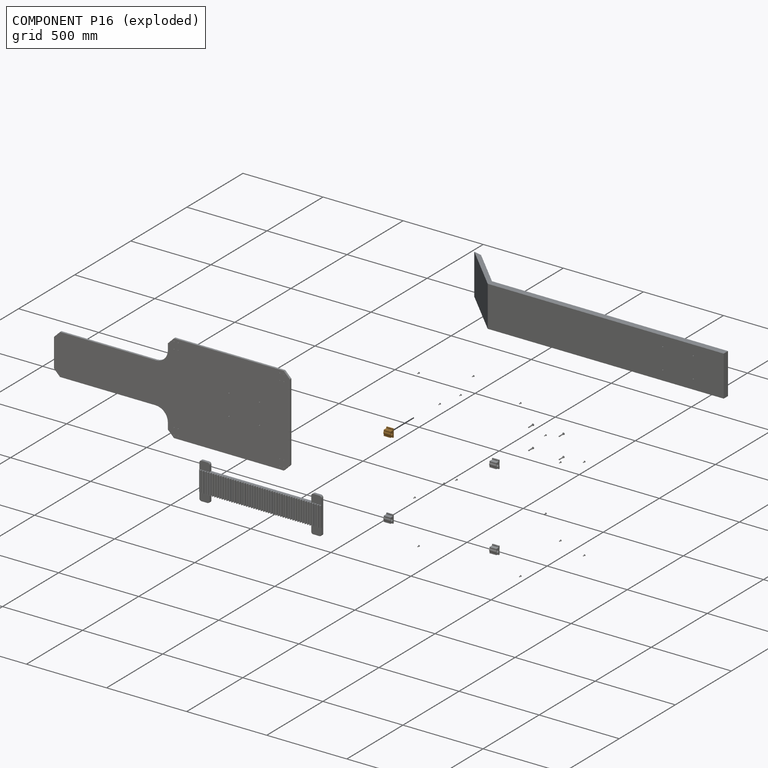
[diagram: component P16 — exploded]
COMPONENT P16 — geometry summary (no construction recipe available for this part):
  bounding box: 50.8 x 42.9 x 31.8 mm
  B-rep topology: 1 solid, 939 faces, 5432 edges
  volume: 42037 mm^3 (61% of its bounding box)
  symmetry: mirror-symmetric across its y mid-plane
Held by: FASTENED mate "Fastened 3" to P24.
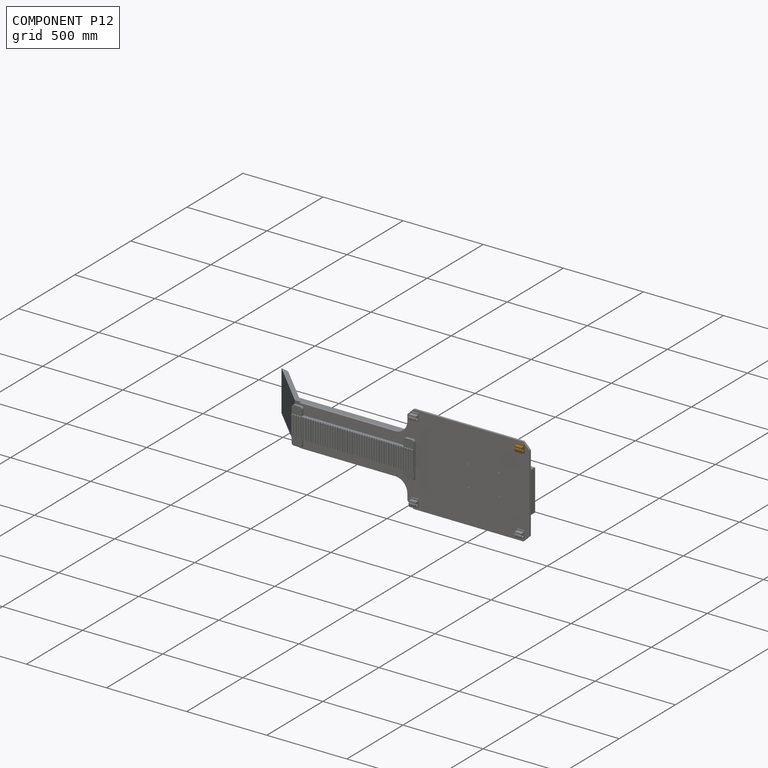
[diagram: component P12 — assembled]
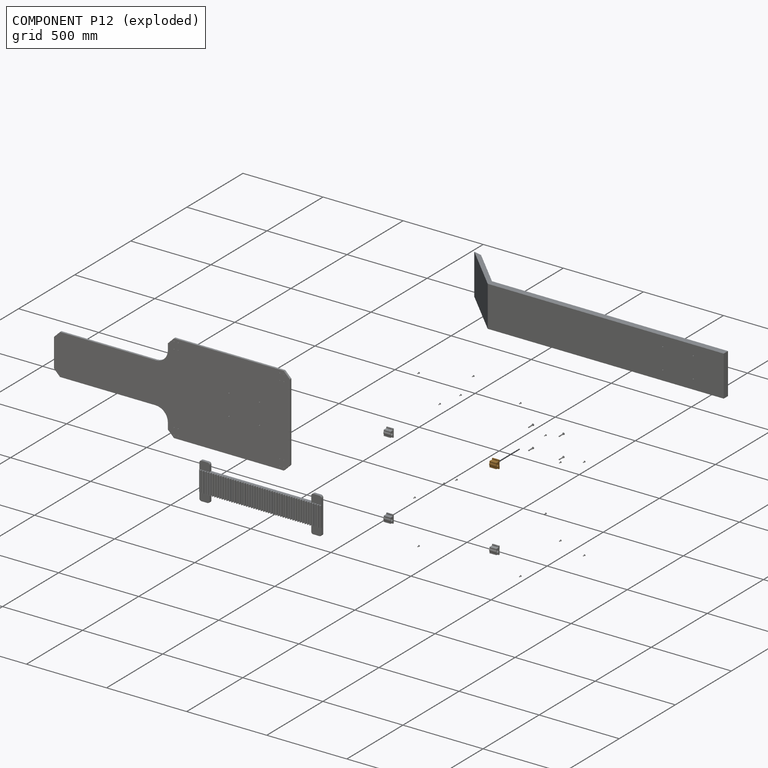
[diagram: component P12 — exploded]
COMPONENT P12 — geometry summary (no construction recipe available for this part):
  bounding box: 50.8 x 42.9 x 31.8 mm
  B-rep topology: 1 solid, 939 faces, 5432 edges
  volume: 42037 mm^3 (61% of its bounding box)
  symmetry: mirror-symmetric across its y mid-plane
Held by: FASTENED mate "Fastened 4" to P24.
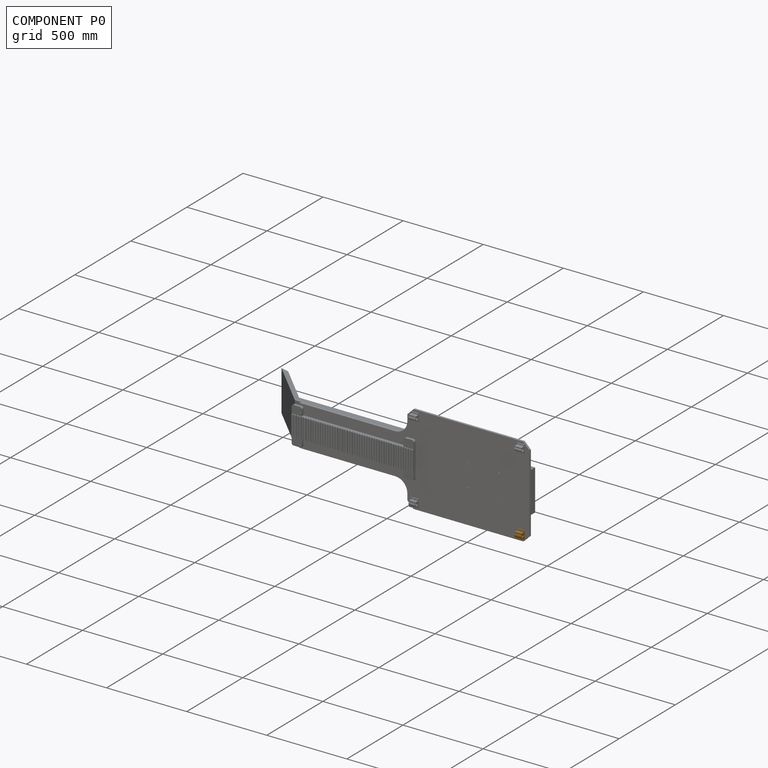
[diagram: component P0 — assembled]
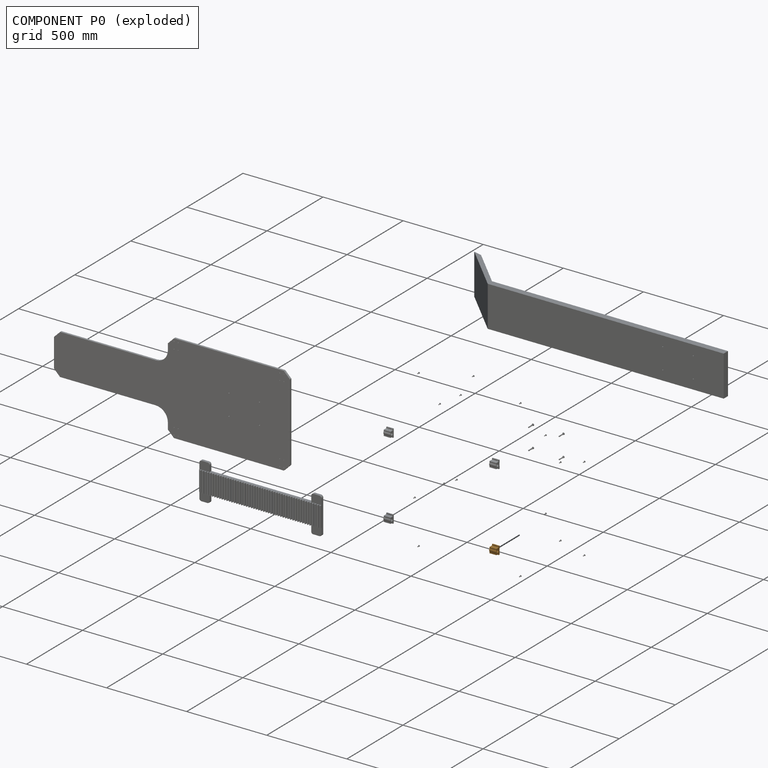
[diagram: component P0 — exploded]
COMPONENT P0 — geometry summary (no construction recipe available for this part):
  bounding box: 50.8 x 42.9 x 31.8 mm
  B-rep topology: 1 solid, 939 faces, 5432 edges
  volume: 42037 mm^3 (61% of its bounding box)
  symmetry: mirror-symmetric across its y mid-plane
Held by: FASTENED mate "Fastened 5" to P24.
